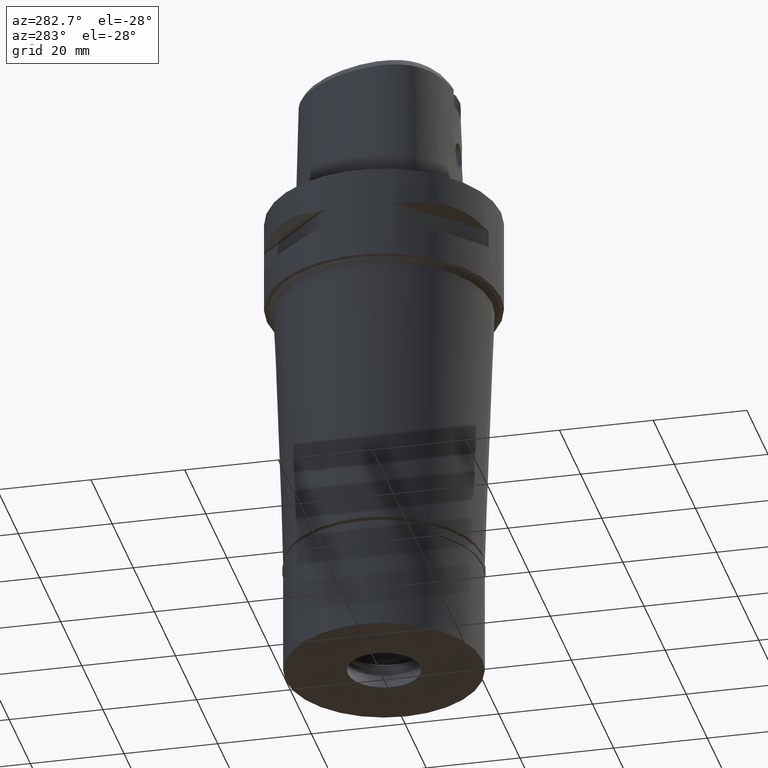
[diagram: clean part render]
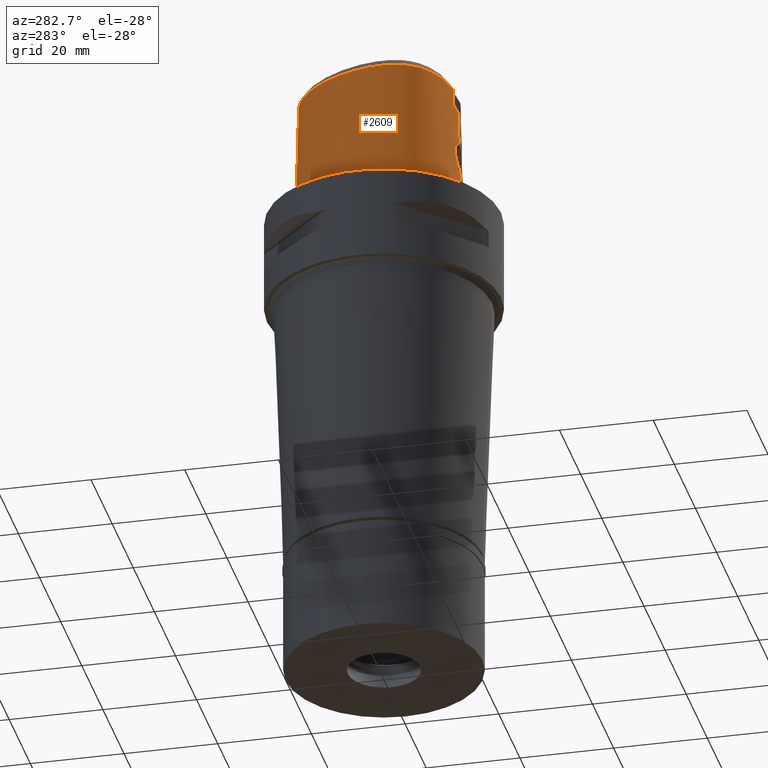
[diagram: same view with one face highlighted and labeled with its STEP entity id]
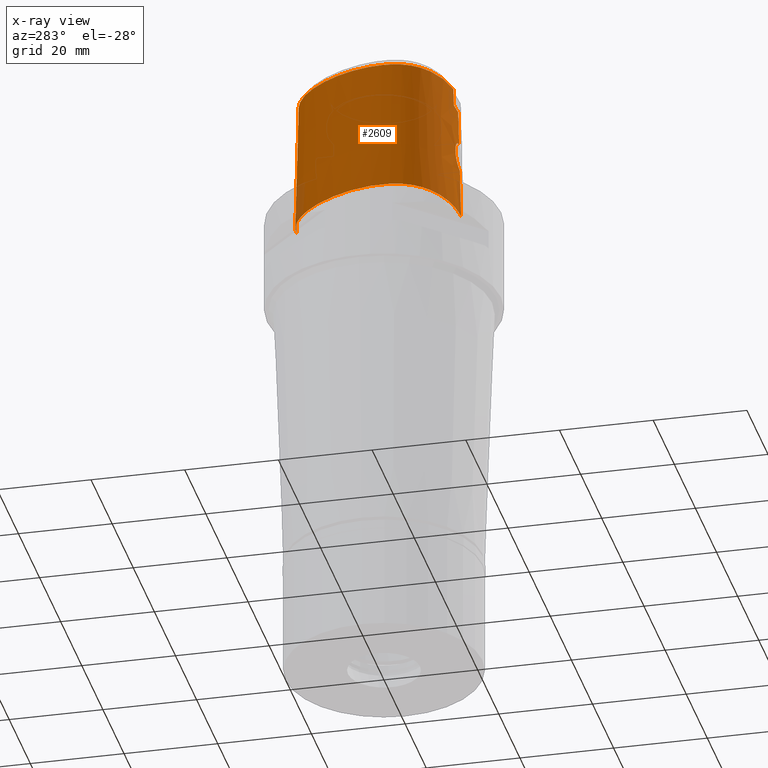
[diagram: x-ray of the same camera — body ghosted, the highlighted face saturated]
A machine part, auxiliary view. The second image highlights one B-rep face of the part: STEP entity #2609.
The next image is the same camera in x-ray: the body ghosted, the highlighted face saturated — about 2% of this face is hidden behind the body in this view.
In plain terms, the highlighted face is a freeform B-spline surface patch.
Its self-contained STEP definition (entity closure, byte-faithful):
#6 = VERTEX_POINT ( 'NONE', #270 ) ;
#20 = CARTESIAN_POINT ( 'NONE',  ( -11.32630895987000130, -13.06981819039000037, 29.09114864008999746 ) ) ;
#39 = CARTESIAN_POINT ( 'NONE',  ( -13.05575607615000067, -11.90823715250999904, 29.09114864008999746 ) ) ;
#49 = CARTESIAN_POINT ( 'NONE',  ( 2.030224829794000080E-07, -15.83752876601000281, 24.70000006102999990 ) ) ;
#71 = CARTESIAN_POINT ( 'NONE',  ( -3.168920966622999824, -15.55911077538999976, 28.52071192346999950 ) ) ;
#105 = ORIENTED_EDGE ( 'NONE', *, *, #3961, .T. ) ;
#108 = CARTESIAN_POINT ( 'NONE',  ( 1.070056060587999847, -15.95437367733000222, 19.20396086698999838 ) ) ;
#136 = VECTOR ( 'NONE', #3525, 1000.000000000000227 ) ;
#144 = CARTESIAN_POINT ( 'NONE',  ( -15.07117015427892426, -9.793013966485411004, 28.52071192347006345 ) ) ;
#157 = CARTESIAN_POINT ( 'NONE',  ( -2.152758532514000202E-12, -16.18126839358999902, 10.94999999999999929 ) ) ;
#192 = CARTESIAN_POINT ( 'NONE',  ( -4.735056264440999918, 17.74784407891000271, -0.5704146792174999980 ) ) ;
#228 = CARTESIAN_POINT ( 'NONE',  ( -3.048918288824035372, -15.93569181003062063, 14.09458409078622765 ) ) ;
#248 = CARTESIAN_POINT ( 'NONE',  ( -2.043508292966000006, 18.56419796941000300, -0.5704146792174999980 ) ) ;
#249 = CARTESIAN_POINT ( 'NONE',  ( 2.030224829794000080E-07, -15.83752876601000281, 24.70000006102999990 ) ) ;
#254 = CARTESIAN_POINT ( 'NONE',  ( -3.044373801969537219, -15.93377869067412078, 14.19140803545590757 ) ) ;
#270 = CARTESIAN_POINT ( 'NONE',  ( -3.094719018046000398E-11, 17.98202997909999823, 28.52071728569000086 ) ) ;
#274 = CARTESIAN_POINT ( 'NONE',  ( 0.3838142946076000261, 18.70350312468999832, -0.5704146792174999980 ) ) ;
#280 = CARTESIAN_POINT ( 'NONE',  ( -2.852964108057065573, -15.98613240798082913, 12.92095709857099983 ) ) ;
#286 = CARTESIAN_POINT ( 'NONE',  ( -14.78833380201542447, -11.28232909967865361, 1.088239041252287570E-07 ) ) ;
#308 = CARTESIAN_POINT ( 'NONE',  ( -2.785351805582557017, -15.99721084885888445, 12.75429401941662633 ) ) ;
#329 = CARTESIAN_POINT ( 'NONE',  ( -17.02224577203999800, -0.3128848840006000498, 19.20396086698999838 ) ) ;
#335 = CARTESIAN_POINT ( 'NONE',  ( -1.671121799479498682, -15.99125384014655360, 16.55147925626865657 ) ) ;
#339 = ORIENTED_EDGE ( 'NONE', *, *, #518, .F. ) ;
#350 = CARTESIAN_POINT ( 'NONE',  ( -15.57503089765999782, -8.992248280335999766, 29.09114864008999746 ) ) ;
#356 = CARTESIAN_POINT ( 'NONE',  ( -2.277845221344409588, -16.06297226044945603, 11.97064251377653399 ) ) ;
#370 = CARTESIAN_POINT ( 'NONE',  ( -14.43869628594999810, -10.95090976352000034, 19.20396086698999838 ) ) ;
#377 = CARTESIAN_POINT ( 'NONE',  ( -1.365876440252949298, -16.14000093520532175, 11.27254294479042862 ) ) ;
#393 = CARTESIAN_POINT ( 'NONE',  ( -14.39249255182000020, 8.309508948475000878, -0.5704146792174999980 ) ) ;
#416 = CARTESIAN_POINT ( 'NONE',  ( -10.90668505245999853, 11.98047074195000050, 29.09114864008999746 ) ) ;
#421 = CARTESIAN_POINT ( 'NONE',  ( -2.567601606276564752, -16.02824055683983673, 12.35375696231889009 ) ) ;
#436 = CARTESIAN_POINT ( 'NONE',  ( 1.079551361422000033, -16.20136644801999992, 9.316773093885998946 ) ) ;
#443 = CARTESIAN_POINT ( 'NONE',  ( -2.651693848328784853, -16.01689519106128756, 12.49206992028461016 ) ) ;
#459 = CARTESIAN_POINT ( 'NONE',  ( -1.309813752288000011, -16.25411917817999807, 9.316773093885998946 ) ) ;
#489 = CARTESIAN_POINT ( 'NONE',  ( -5.902447850708562704, -15.16907854011714996, 28.52071192347006701 ) ) ;
#518 = EDGE_CURVE ( 'NONE', #1573, #1793, #4616, .T. ) ;
#564 = CARTESIAN_POINT ( 'NONE',  ( -0.4507704910582000513, 17.98660866319999840, 29.09114864008999746 ) ) ;
#591 = CARTESIAN_POINT ( 'NONE',  ( -2.804416461969069463, -15.93383585885218778, 15.19914549896370914 ) ) ;
#596 = CARTESIAN_POINT ( 'NONE',  ( -4.728927205647177168, 17.73480468501485419, 1.088239041252287570E-07 ) ) ;
#611 = CARTESIAN_POINT ( 'NONE',  ( -1.992618747787999745, 18.32080816615999908, 9.316773093885998946 ) ) ;
#620 = CARTESIAN_POINT ( 'NONE',  ( -2.663989615082480444, -15.94049756288798747, 15.48802251321458456 ) ) ;
#633 = B_SPLINE_CURVE_WITH_KNOTS ( 'NONE', 3,
 ( #49, #4168, #4429, #1788 ),
 .UNSPECIFIED., .F., .F.,
 ( 4, 4 ),
 ( 0.0000000000000000000, 1.000000000000000000 ),
 .UNSPECIFIED. ) ;
#639 = FACE_OUTER_BOUND ( 'NONE', #1041, .T. ) ;
#646 = CARTESIAN_POINT ( 'NONE',  ( -2.453157249249065863, -15.95160785209449195, 15.82331514068232181 ) ) ;
#669 = CARTESIAN_POINT ( 'NONE',  ( -3.027041479268470336, -15.93083733890006037, 14.38613028389022830 ) ) ;
#673 = ORIENTED_EDGE ( 'NONE', *, *, #2483, .T. ) ;
#693 = CARTESIAN_POINT ( 'NONE',  ( -17.22987931919999838, -3.272349403330999884, 19.20396086698999838 ) ) ;
#702 = CARTESIAN_POINT ( 'NONE',  ( -2.094858927816988459, -15.97106233740288062, 16.21701581232792577 ) ) ;
#721 = CARTESIAN_POINT ( 'NONE',  ( -15.46013588123999938, -10.07579656574999838, 9.316773093885998946 ) ) ;
#726 = CARTESIAN_POINT ( 'NONE',  ( -2.326795673539356013, -16.05749942887523218, 12.02743345691540533 ) ) ;
#736 = CARTESIAN_POINT ( 'NONE',  ( -11.28662494062000121, 12.30111481277999985, 9.316773093885998946 ) ) ;
#741 = CARTESIAN_POINT ( 'NONE',  ( -1.175386497639898220, -16.15078445366179949, 11.18557374674752403 ) ) ;
#757 = CARTESIAN_POINT ( 'NONE',  ( -15.25987606923999884, -9.930205357474001460, 19.20396086698999838 ) ) ;
#781 = CARTESIAN_POINT ( 'NONE',  ( 2.030224829794000080E-07, -15.83752876601000281, 24.70000006102999990 ) ) ;
#782 = CARTESIAN_POINT ( 'NONE',  ( -16.77753616556999816, -0.3562822995257000080, 29.09114864008999746 ) ) ;
#787 = CARTESIAN_POINT ( 'NONE',  ( -2.543826128444886425, -16.03134158490992078, 12.31726274100129359 ) ) ;
#877 = CARTESIAN_POINT ( 'NONE',  ( -14.26907056455793388, -10.79012254419233408, 28.52071192347006345 ) ) ;
#893 = CARTESIAN_POINT ( 'NONE',  ( 0.7264497205352999920, -16.46229665950000154, -0.5704146792174999980 ) ) ;
#896 = CARTESIAN_POINT ( 'NONE',  ( -3.235121119988999983, -15.64755630481999837, 24.69999999999999929 ) ) ;
#899 = CARTESIAN_POINT ( 'NONE',  ( -7.523733151595170199, 15.26501052509955336, 28.52071192347006345 ) ) ;
#958 = CARTESIAN_POINT ( 'NONE',  ( -0.7716804096376578270, -16.02065638628776512, 16.95256773572611309 ) ) ;
#973 = CARTESIAN_POINT ( 'NONE',  ( -0.4893119563403999783, 18.72969240737000263, -0.5704146792174999980 ) ) ;
#979 = CARTESIAN_POINT ( 'NONE',  ( -2.953287761239811182, -15.96791042230702473, 13.23104891048737386 ) ) ;
#985 = CARTESIAN_POINT ( 'NONE',  ( -16.51672824523044270, 3.703437499071053907, 1.088239041252287570E-07 ) ) ;
#1006 = CARTESIAN_POINT ( 'NONE',  ( -2.828519626698093870, -15.99018834924777188, 12.85893844538407826 ) ) ;
#1033 = CARTESIAN_POINT ( 'NONE',  ( -2.139722381400781082, -15.96867257770621507, 16.17353267031655051 ) ) ;
#1040 = CARTESIAN_POINT ( 'NONE',  ( -2.040572357107150125, 18.55015624731283452, 1.088239041252287570E-07 ) ) ;
#1041 = EDGE_LOOP ( 'NONE', ( #1366, #3652, #3955, #1513, #339, #673, #3791, #105 ) ) ;
#1052 = CARTESIAN_POINT ( 'NONE',  ( -1.893775706183934870, 17.84807082153901447, 28.52071192347006345 ) ) ;
#1053 = CARTESIAN_POINT ( 'NONE',  ( -1.084489118009463349, -15.83754148632643322, 24.70000016923104624 ) ) ;
#1058 = CARTESIAN_POINT ( 'NONE',  ( -0.3789226270132306507, -16.02723154424910490, 17.03294418566224877 ) ) ;
#1064 = CARTESIAN_POINT ( 'NONE',  ( -1.728596458601000357E-11, -16.45500000000000185, 1.597240858093999809E-13 ) ) ;
#1075 = CARTESIAN_POINT ( 'NONE',  ( -15.66039569324999903, -10.22138777402999921, -0.5704146792174999980 ) ) ;
#1101 = CARTESIAN_POINT ( 'NONE',  ( -17.57791639671999917, -5.458025465841999768, -0.5704146792174999980 ) ) ;
#1105 = CARTESIAN_POINT ( 'NONE',  ( -1.572520811367626781, -16.12649376600623796, 11.38472095010844498 ) ) ;
#1119 = CARTESIAN_POINT ( 'NONE',  ( -16.70311417931999998, -7.028822877637000310, 19.20396086698999838 ) ) ;
#1123 = CARTESIAN_POINT ( 'NONE',  ( -1.824495776585694617, -16.10763072133377705, 11.54770719424353764 ) ) ;
#1142 = CARTESIAN_POINT ( 'NONE',  ( -16.21839714751999750, -9.363695958963001331, -0.5704146792174999980 ) ) ;
#1150 = CARTESIAN_POINT ( 'NONE',  ( -2.152758532514000202E-12, -16.18126839358999902, 10.94999999999999929 ) ) ;
#1166 = CARTESIAN_POINT ( 'NONE',  ( -16.98194844896999811, -3.273961224848000118, 29.09114864008999746 ) ) ;
#1261 = CARTESIAN_POINT ( 'NONE',  ( -13.75951393052763549, 7.944084103041840983, 28.52071192347006345 ) ) ;
#1298 = VECTOR ( 'NONE', #3899, 1000.000000000000114 ) ;
#1312 = CARTESIAN_POINT ( 'NONE',  ( 0.5756361491114000417, 18.69183959964999886, -0.5704146792174999980 ) ) ;
#1319 = CARTESIAN_POINT ( 'NONE',  ( -3.050024389103566325, -15.93682728871436893, 14.04426652284395338 ) ) ;
#1346 = CARTESIAN_POINT ( 'NONE',  ( -0.6729281202665636785, -16.02259025627639133, 16.97651237904460331 ) ) ;
#1364 = CARTESIAN_POINT ( 'NONE',  ( -3.235121119988999983, -15.64755630481999837, 24.69999999999999929 ) ) ;
#1366 = ORIENTED_EDGE ( 'NONE', *, *, #1524, .F. ) ;
#1370 = CARTESIAN_POINT ( 'NONE',  ( -1.331640452552601328, -16.00477934145620296, 16.74576209627488765 ) ) ;
#1396 = CARTESIAN_POINT ( 'NONE',  ( -1.684236301197248098, -15.99068050411804265, 16.54283389550525385 ) ) ;
#1401 = CARTESIAN_POINT ( 'NONE',  ( -13.50690093311215989, -12.48264648222586004, 1.088239041252287570E-07 ) ) ;
#1422 = CARTESIAN_POINT ( 'NONE',  ( -2.955918695227855331, -15.92874700794740050, 14.77770287554761808 ) ) ;
#1427 = CARTESIAN_POINT ( 'NONE',  ( -16.66912841889917374, -8.445800780143073894, 1.088239041252287570E-07 ) ) ;
#1438 = CARTESIAN_POINT ( 'NONE',  ( -16.68217932079999954, -8.451606616537999273, -0.5704146792174999980 ) ) ;
#1445 = CARTESIAN_POINT ( 'NONE',  ( -1.185240961618061029, -16.15026635704342439, 11.18970954939998208 ) ) ;
#1465 = CARTESIAN_POINT ( 'NONE',  ( -16.84071409250999807, -5.352498117070000561, 29.09114864008999746 ) ) ;
#1489 = CARTESIAN_POINT ( 'NONE',  ( -7.668807714665000219, 15.44980314674999988, 19.20396086698999838 ) ) ;
#1496 = CARTESIAN_POINT ( 'NONE',  ( -1.489022098419193973, -16.13222843889005986, 11.33656707562937527 ) ) ;
#1512 = CARTESIAN_POINT ( 'NONE',  ( -11.47659488470000078, 12.46143684819999997, -0.5704146792174999980 ) ) ;
#1513 = ORIENTED_EDGE ( 'NONE', *, *, #3557, .T. ) ;
#1524 = EDGE_CURVE ( 'NONE', #3747, #4379, #2402, .T. ) ;
#1536 = CARTESIAN_POINT ( 'NONE',  ( -5.053620743780999014, -16.16974068437999890, -0.5704146792174999980 ) ) ;
#1559 = B_SPLINE_CURVE_WITH_KNOTS ( 'NONE', 3,
 ( #3287, #3209, #1040, #596, #4026, #2891, #2107, #985, #2553, #2131, #2081, #1811, #1427, #1782, #4803, #286, #1401, #4720, #3605, #4051, #4451, #1064 ),
 .UNSPECIFIED., .F., .F.,
 ( 4, 1, 1, 1, 1, 1, 1, 1, 1, 1, 1, 1, 1, 1, 1, 1, 1, 1, 1, 4 ),
 ( 0.0000000000000000000, 0.04166666666808999803, 0.08333333333469000737, 0.1666666666679000042, 0.2500000000011000090, 0.3333333333342999860, 0.4166666666675999942, 0.5000000000008000267, 0.5416666666674000430, 0.5833333333340000593, 0.6250000000005999645, 0.6458333333339000282, 0.6666666666671999808, 0.6875000000005000445, 0.7083333333337999971, 0.7500000000004000134, 0.7916666666671000607, 0.8333333333336000459, 0.9166666666668999985, 1.000000000000000000 ),
 .UNSPECIFIED. ) ;
#1573 = VERTEX_POINT ( 'NONE', #3161 ) ;
#1607 = CARTESIAN_POINT ( 'NONE',  ( -4.922186780944000084, -15.43572509670999970, 29.09114864008999746 ) ) ;
#1614 = CARTESIAN_POINT ( 'NONE',  ( -8.702202515497358348, -14.36510996956317321, 28.52071192347006345 ) ) ;
#1651 = CARTESIAN_POINT ( 'NONE',  ( -3.094719018046000398E-11, 17.98202997909999823, 28.52071728569000086 ) ) ;
#1660 = EDGE_CURVE ( 'NONE', #4774, #4041, #633, .T. ) ;
#1683 = B_SPLINE_CURVE_WITH_KNOTS ( 'NONE', 3,
 ( #1832, #2940, #1058, #1346, #958, #3623, #3645, #4795, #2835, #3311, #4445, #4825, #4022, #1370, #4714, #1750, #2492, #3971, #4075, #335, #1396, #4336, #2523, #2886, #2913, #702, #1776, #1033, #3997, #2547, #646, #2469, #620, #4045, #2102, #2203, #591, #2125, #3700, #1726, #4766, #1422, #3600, #669, #3232, #254, #228, #1319, #4741, #2857, #4361, #979, #3258, #4392, #280, #2175, #1006, #2149, #3672, #308, #2639, #2228, #443, #3724, #4099, #421, #2623, #787, #2986, #4515, #726, #356, #3765, #4122, #1853, #4472, #2245, #1123, #1105, #1496, #377, #1899, #3359, #4560, #1445, #741, #3743, #4866, #3789, #1150 ),
 .UNSPECIFIED., .F., .F.,
 ( 4, 2, 2, 1, 1, 1, 2, 2, 2, 2, 1, 2, 2, 2, 1, 1, 2, 2, 2, 2, 1, 1, 1, 2, 2, 2, 2, 2, 2, 2, 2, 1, 1, 1, 2, 2, 2, 2, 1, 2, 2, 2, 1, 1, 2, 2, 2, 2, 1, 1, 1, 2, 2, 4 ),
 ( 0.0000000000000000000, 0.06250000000002621514, 0.09375000000003930190, 0.1093750000000458800, 0.1171875000000491968, 0.1210937500000508482, 0.1230468750000514866, 0.1250000000000521250, 0.1562500000000583700, 0.1718750000000612566, 0.1796875000000629219, 0.1835937500000634770, 0.1875000000000640321, 0.2187500000000664746, 0.2343750000000676681, 0.2421875000000681954, 0.2460937500000684730, 0.2500000000000687228, 0.3125000000000682787, 0.3437500000000680567, 0.3593750000000681677, 0.3671875000000682232, 0.3710937500000682787, 0.3730468750000680012, 0.3750000000000676681, 0.4375000000000611733, 0.4687500000000578981, 0.4843750000000562883, 0.5000000000000546230, 0.5625000000000480727, 0.5937500000000445199, 0.6093750000000427436, 0.6171875000000419664, 0.6210937500000411893, 0.6230468750000409672, 0.6250000000000406342, 0.6562500000000388578, 0.6718750000000377476, 0.6796875000000369704, 0.6835937500000364153, 0.6875000000000357492, 0.7187500000000311973, 0.7343750000000288658, 0.7421875000000275335, 0.7460937500000269784, 0.7500000000000263123, 0.8125000000000155431, 0.8437500000000101030, 0.8593750000000074385, 0.8671875000000059952, 0.8710937500000055511, 0.8730468750000054401, 0.8750000000000054401, 1.000000000000000000 ),
 .UNSPECIFIED. ) ;
#1726 = CARTESIAN_POINT ( 'NONE',  ( -2.816407481551108205, -15.93333177460182881, 15.17063687596087362 ) ) ;
#1744 = CARTESIAN_POINT ( 'NONE',  ( -3.094719018046000398E-11, 17.98202997909999823, 28.52071728569000086 ) ) ;
#1750 = CARTESIAN_POINT ( 'NONE',  ( -1.509334869946248991, -15.99801316580287391, 16.65089544971855062 ) ) ;
#1776 = CARTESIAN_POINT ( 'NONE',  ( -2.121841374836663352, -15.96962928976703999, 16.19099185722633649 ) ) ;
#1782 = CARTESIAN_POINT ( 'NONE',  ( -16.20602471727766059, -9.356552733011271883, 1.088239041252287570E-07 ) ) ;
#1788 = CARTESIAN_POINT ( 'NONE',  ( 0.0000000000000000000, -16.02877864023999877, 17.05000000000000071 ) ) ;
#1793 = VERTEX_POINT ( 'NONE', #896 ) ;
#1811 = CARTESIAN_POINT ( 'NONE',  ( -17.16495051518848669, -7.165908202348020950, 1.088239041252287570E-07 ) ) ;
#1826 = CARTESIAN_POINT ( 'NONE',  ( -17.33218229532000265, -5.422849682918000624, 9.316773093885998946 ) ) ;
#1832 = CARTESIAN_POINT ( 'NONE',  ( 0.0000000000000000000, -16.02877864023999877, 17.05000000000000071 ) ) ;
#1847 = CARTESIAN_POINT ( 'NONE',  ( -14.79871907681000032, -11.29217324030999947, -0.5704146792174999980 ) ) ;
#1853 = CARTESIAN_POINT ( 'NONE',  ( -2.174903967716026898, -16.07399873101336496, 11.86167149722171921 ) ) ;
#1872 = CARTESIAN_POINT ( 'NONE',  ( -11.69401646398999972, -13.71637917763999859, -0.5704146792174999980 ) ) ;
#1894 = CARTESIAN_POINT ( 'NONE',  ( -14.17736239991000069, 8.185312174898999871, 9.316773093885998946 ) ) ;
#1899 = CARTESIAN_POINT ( 'NONE',  ( -1.304824586066017922, -16.14367980511033096, 11.24258093298039185 ) ) ;
#1916 = CARTESIAN_POINT ( 'NONE',  ( -16.06260405209999931, 3.539545327583000223, 19.20396086698999838 ) ) ;
#1965 = CARTESIAN_POINT ( 'NONE',  ( 0.7138086210330000236, -15.96808631167000136, 19.20396086698999838 ) ) ;
#1987 = CARTESIAN_POINT ( 'NONE',  ( -1.286803362776000048, -15.75925584313999828, 29.09114864008999746 ) ) ;
#2046 = CARTESIAN_POINT ( 'NONE',  ( -16.01658395503946153, -8.155509241189948355, 28.52071192347006345 ) ) ;
#2062 = EDGE_CURVE ( 'NONE', #6, #2580, #3917, .T. ) ;
#2071 = CARTESIAN_POINT ( 'NONE',  ( -1.941729202609999927, 18.07741836289999782, 19.20396086698999838 ) ) ;
#2081 = CARTESIAN_POINT ( 'NONE',  ( -17.56373942662683874, -5.455996093363066457, 1.088239041252287570E-07 ) ) ;
#2102 = CARTESIAN_POINT ( 'NONE',  ( -2.757857542923210392, -15.93590525390328061, 15.30389640928451378 ) ) ;
#2107 = CARTESIAN_POINT ( 'NONE',  ( -14.38008119453428613, 8.302343748632480924, 1.088239041252287570E-07 ) ) ;
#2118 = CARTESIAN_POINT ( 'NONE',  ( -4.522582266791999928, 17.29581184346000100, 19.20396086698999838 ) ) ;
#2125 = CARTESIAN_POINT ( 'NONE',  ( -2.810669180506971010, -15.93357175435964557, 15.18434255724989690 ) ) ;
#2131 = CARTESIAN_POINT ( 'NONE',  ( -17.71143735288884002, -3.269218750017643949, 1.088239041252287570E-07 ) ) ;
#2143 = CARTESIAN_POINT ( 'NONE',  ( -0.6295828121026221247, 17.98203011041624322, 28.52071192347006345 ) ) ;
#2149 = CARTESIAN_POINT ( 'NONE',  ( -2.823487070365362062, -15.99101270351569681, 12.84654193248368870 ) ) ;
#2152 = EDGE_CURVE ( 'NONE', #4041, #3747, #1683, .T. ) ;
#2175 = CARTESIAN_POINT ( 'NONE',  ( -2.835998777458668574, -15.98895818849806183, 12.87753709205216524 ) ) ;
#2197 = CARTESIAN_POINT ( 'NONE',  ( -16.94089130408000088, -7.099401461055999896, 9.316773093885998946 ) ) ;
#2203 = CARTESIAN_POINT ( 'NONE',  ( -2.789432624429007745, -15.93448362604002533, 15.23385107220149592 ) ) ;
#2222 = CARTESIAN_POINT ( 'NONE',  ( -16.53021708529999856, 3.708305584329000038, -0.5704146792174999980 ) ) ;
#2228 = CARTESIAN_POINT ( 'NONE',  ( -2.676760126935361583, -16.01335860443708370, 12.53714519679417627 ) ) ;
#2240 = CARTESIAN_POINT ( 'NONE',  ( -13.51574691241999915, -12.49390941244999986, -0.5704146792174999980 ) ) ;
#2245 = CARTESIAN_POINT ( 'NONE',  ( -1.994661405231719309, -16.09284332352419611, 11.68121651172277886 ) ) ;
#2262 = CARTESIAN_POINT ( 'NONE',  ( -13.96223224801000207, 8.061115401322000551, 19.20396086698999838 ) ) ;
#2284 = CARTESIAN_POINT ( 'NONE',  ( -16.46533705454999819, -6.958244294217000636, 29.09114864008999746 ) ) ;
#2306 = CARTESIAN_POINT ( 'NONE',  ( -1.321318947044000103, -16.50155084569999886, -0.5704146792174999980 ) ) ;
#2387 = CARTESIAN_POINT ( 'NONE',  ( -16.99625270563107904, -3.273868231552532038, 28.52071192347006345 ) ) ;
#2402 = LINE ( 'NONE', #4776, #1298 ) ;
#2403 = CARTESIAN_POINT ( 'NONE',  ( 0.7074880712817999129, -15.72098113775999906, 29.09114864008999746 ) ) ;
#2410 = CARTESIAN_POINT ( 'NONE',  ( -4.422474562381552232, 17.08283562090138119, 28.52071192347006345 ) ) ;
#2440 = CARTESIAN_POINT ( 'NONE',  ( -3.738627773282634514, -15.49270868799968603, 28.52071192347006701 ) ) ;
#2463 = CARTESIAN_POINT ( 'NONE',  ( 0.3738602559508000245, 18.45648976892000093, 9.316773093885998946 ) ) ;
#2469 = CARTESIAN_POINT ( 'NONE',  ( -2.615901618698787345, -15.94298692150371366, 15.57147967509453501 ) ) ;
#2483 = EDGE_CURVE ( 'NONE', #1573, #6, #4798, .T. ) ;
#2484 = CARTESIAN_POINT ( 'NONE',  ( -0.4636176461521999692, 18.23430324458999863, 19.20396086698999838 ) ) ;
#2492 = CARTESIAN_POINT ( 'NONE',  ( -1.578081282715749989, -15.99520688258703949, 16.61014732800386895 ) ) ;
#2523 = CARTESIAN_POINT ( 'NONE',  ( -1.858121229639966066, -15.98284882596957068, 16.42071856142329622 ) ) ;
#2547 = CARTESIAN_POINT ( 'NONE',  ( -2.319868985700254349, -15.95889227881316508, 15.99336665119471057 ) ) ;
#2553 = CARTESIAN_POINT ( 'NONE',  ( -17.49754712038485494, -0.2285937504776754392, 1.088239041252287570E-07 ) ) ;
#2580 = VERTEX_POINT ( 'NONE', #3591 ) ;
#2582 = CARTESIAN_POINT ( 'NONE',  ( 0.0000000000000000000, -16.02877864023999877, 17.05000000000000071 ) ) ;
#2597 = CARTESIAN_POINT ( 'NONE',  ( -7.976721801340999285, 15.84201698574000083, -0.5704146792174999980 ) ) ;
#2609 = ADVANCED_FACE ( 'NONE', ( #639 ), #4327, .T. ) ;
#2619 = CARTESIAN_POINT ( 'NONE',  ( -14.25868489051999966, -10.78027802512000122, 29.09114864008999746 ) ) ;
#2623 = CARTESIAN_POINT ( 'NONE',  ( -2.552453281223320936, -16.03022206925511384, 12.33036638904223814 ) ) ;
#2634 = CARTESIAN_POINT ( 'NONE',  ( -7.822764758003000196, 15.64591006625000169, 9.316773093885998946 ) ) ;
#2639 = CARTESIAN_POINT ( 'NONE',  ( -2.746377481657158892, -16.00326057041208117, 12.66963668950923427 ) ) ;
#2657 = CARTESIAN_POINT ( 'NONE',  ( -13.36241663366999965, -12.29868532581000018, 9.316773093885998946 ) ) ;
#2702 = CARTESIAN_POINT ( 'NONE',  ( 1.089046662255999998, -16.44835921869999851, -0.5704146792174999980 ) ) ;
#2758 = CARTESIAN_POINT ( 'NONE',  ( -15.58740380353834176, -8.999391780896363713, 28.52071192347006345 ) ) ;
#2779 = CARTESIAN_POINT ( 'NONE',  ( -10.91764528034727455, 11.98972044748609100, 28.52071192347006345 ) ) ;
#2828 = CARTESIAN_POINT ( 'NONE',  ( -2.169052023958539355, -15.77399788493655208, 24.70000016923104624 ) ) ;
#2835 = CARTESIAN_POINT ( 'NONE',  ( -1.123850819246874799, -16.01154604563820882, 16.83544840129984621 ) ) ;
#2850 = CARTESIAN_POINT ( 'NONE',  ( 0.5455910013629000632, 18.19844124335999780, 19.20396086698999838 ) ) ;
#2857 = CARTESIAN_POINT ( 'NONE',  ( -3.033174470079178064, -15.94941370605617870, 13.62317640955339115 ) ) ;
#2886 = CARTESIAN_POINT ( 'NONE',  ( -1.974011923642906785, -15.97722169910668200, 16.32556985268775307 ) ) ;
#2891 = CARTESIAN_POINT ( 'NONE',  ( -11.46563507814293104, 12.45218749823809823, 1.088239041252287570E-07 ) ) ;
#2913 = CARTESIAN_POINT ( 'NONE',  ( -2.030787586191781902, -15.97439197203208039, 16.27657083949377181 ) ) ;
#2940 = CARTESIAN_POINT ( 'NONE',  ( -0.1860095695925088610, -16.02877864024000232, 17.05000000000000782 ) ) ;
#2956 = CARTESIAN_POINT ( 'NONE',  ( -16.45596373100999799, -8.350972138224999952, 9.316773093885998946 ) ) ;
#2982 = CARTESIAN_POINT ( 'NONE',  ( -15.05961625722999919, -9.784614149193998855, 29.09114864008999746 ) ) ;
#2986 = CARTESIAN_POINT ( 'NONE',  ( -2.481413756882850485, -16.03938740154340081, 12.22374741087844896 ) ) ;
#3000 = CARTESIAN_POINT ( 'NONE',  ( -8.782085141561999819, -14.58525468513999890, 19.20396086698999838 ) ) ;
#3018 = CARTESIAN_POINT ( 'NONE',  ( -15.78948631427999949, -9.116064173212000910, 19.20396086698999838 ) ) ;
#3043 = CARTESIAN_POINT ( 'NONE',  ( -5.009809422834999637, -15.92506882181999828, 9.316773093885998946 ) ) ;
#3119 = CARTESIAN_POINT ( 'NONE',  ( -11.33338053121870992, -13.08225253589922943, 28.52071192347006345 ) ) ;
#3145 = CARTESIAN_POINT ( 'NONE',  ( -16.79165457291126273, -0.3537785057483348594, 28.52071192347006345 ) ) ;
#3161 = CARTESIAN_POINT ( 'NONE',  ( -3.168920966622999824, -15.55911077538999976, 28.52071192346999950 ) ) ;
#3193 = CARTESIAN_POINT ( 'NONE',  ( -0.4764648012463000293, 18.48199782597999885, 9.316773093885998946 ) ) ;
#3209 = CARTESIAN_POINT ( 'NONE',  ( -0.6801907856718545364, 18.69499999728294526, 1.088239041252287438E-07 ) ) ;
#3232 = CARTESIAN_POINT ( 'NONE',  ( -3.040936525959274661, -15.93294854341571032, 14.23999838212785107 ) ) ;
#3258 = CARTESIAN_POINT ( 'NONE',  ( -2.909137552899625945, -15.97627371699405785, 13.08234413149751241 ) ) ;
#3287 = CARTESIAN_POINT ( 'NONE',  ( 7.243243713393999948E-11, 18.69499999997999851, 1.586138627847999922E-13 ) ) ;
#3311 = CARTESIAN_POINT ( 'NONE',  ( -1.142332392167070942, -16.01097948216498068, 16.82800652385402174 ) ) ;
#3332 = CARTESIAN_POINT ( 'NONE',  ( -17.47781018942999864, -3.270737581814000094, 9.316773093885998946 ) ) ;
#3352 = CARTESIAN_POINT ( 'NONE',  ( -17.72574105966999980, -3.269125760296999861, -0.5704146792174999980 ) ) ;
#3359 = CARTESIAN_POINT ( 'NONE',  ( -1.234760267101798314, -16.14760890805741411, 11.21096960602437242 ) ) ;
#3378 = CARTESIAN_POINT ( 'NONE',  ( -8.951632340777999630, -15.05250171727999842, -0.5704146792174999980 ) ) ;
#3401 = CARTESIAN_POINT ( 'NONE',  ( -13.74710209610999989, 7.936918627746000432, 29.09114864008999746 ) ) ;
#3421 = CARTESIAN_POINT ( 'NONE',  ( -8.697311541954000802, -14.35163116907000003, 29.09114864008999746 ) ) ;
#3525 = DIRECTION ( 'NONE',  ( 3.623588411843884826E-12, 0.02499051285796925065, -0.9996876883642689116 ) ) ;
#3528 = CARTESIAN_POINT ( 'NONE',  ( -3.213444811939455636, -15.61774738279276953, 25.97357064115666603 ) ) ;
#3544 = CARTESIAN_POINT ( 'NONE',  ( -16.85489160761147787, -5.354527567564536739, 28.52071192347006345 ) ) ;
#3557 = EDGE_CURVE ( 'NONE', #4774, #1793, #4621, .T. ) ;
#3566 = CARTESIAN_POINT ( 'NONE',  ( -1.890839657432999976, 17.83402855964000011, 29.09114864008999746 ) ) ;
#3591 = CARTESIAN_POINT ( 'NONE',  ( 7.243243713393999948E-11, 18.69499999997999851, 1.586138627847999922E-13 ) ) ;
#3600 = CARTESIAN_POINT ( 'NONE',  ( -3.012997481774263520, -15.92993551890235437, 14.48403558617119913 ) ) ;
#3605 = CARTESIAN_POINT ( 'NONE',  ( -8.946741555252165412, -15.03902343493533955, 1.088239041252287570E-07 ) ) ;
#3623 = CARTESIAN_POINT ( 'NONE',  ( -0.9200171648320253359, -16.01717542030822727, 16.90838961258319273 ) ) ;
#3645 = CARTESIAN_POINT ( 'NONE',  ( -0.9942354941279714087, -16.01528989706931938, 16.88423654522872752 ) ) ;
#3652 = ORIENTED_EDGE ( 'NONE', *, *, #2152, .F. ) ;
#3672 = CARTESIAN_POINT ( 'NONE',  ( -2.820449305715940991, -15.99150796465939273, 12.83914045378499225 ) ) ;
#3682 = CARTESIAN_POINT ( 'NONE',  ( -8.866858741170000613, -14.81887820121000132, 9.316773093885998946 ) ) ;
#3692 = CARTESIAN_POINT ( 'NONE',  ( -4.416345267967000332, 17.06979572572999970, 29.09114864008999746 ) ) ;
#3700 = CARTESIAN_POINT ( 'NONE',  ( -2.814800487489227176, -15.93339868692384265, 15.17448999603886506 ) ) ;
#3718 = CARTESIAN_POINT ( 'NONE',  ( -17.17866842885000267, -7.169980044476000458, -0.5704146792174999980 ) ) ;
#3724 = CARTESIAN_POINT ( 'NONE',  ( -2.611019405680786498, -16.02245593392139966, 12.42336243517980954 ) ) ;
#3737 = CARTESIAN_POINT ( 'NONE',  ( -13.20908635490999927, -12.10346123915999783, 19.20396086698999838 ) ) ;
#3743 = CARTESIAN_POINT ( 'NONE',  ( -1.171575576435078592, -16.15098385800270719, 11.18398276020164595 ) ) ;
#3747 = VERTEX_POINT ( 'NONE', #157 ) ;
#3760 = CARTESIAN_POINT ( 'NONE',  ( -11.57144729594999966, -13.50085884856000007, 9.316773093885998946 ) ) ;
#3765 = CARTESIAN_POINT ( 'NONE',  ( -2.218346767529178809, -16.06939536445589667, 11.90655067609835172 ) ) ;
#3783 = CARTESIAN_POINT ( 'NONE',  ( -15.82879753550999880, 3.455165199209000004, 29.09114864008999746 ) ) ;
#3789 = CARTESIAN_POINT ( 'NONE',  ( -0.3804472261492269358, -16.18126839359000613, 10.95000000000000284 ) ) ;
#3791 = ORIENTED_EDGE ( 'NONE', *, *, #2062, .T. ) ;
#3805 = CARTESIAN_POINT ( 'NONE',  ( -1.298308557531999918, -16.00668751065999729, 19.20396086698999838 ) ) ;
#3871 = CARTESIAN_POINT ( 'NONE',  ( -3.191384176940533557, -15.58827403572775339, 27.24714128231333277 ) ) ;
#3899 = DIRECTION ( 'NONE',  ( -1.381596326677966557E-12, -0.02499051295371941192, -0.9996876883618752707 ) ) ;
#3917 = LINE ( 'NONE', #1651, #136 ) ;
#3955 = ORIENTED_EDGE ( 'NONE', *, *, #1660, .F. ) ;
#3961 = EDGE_CURVE ( 'NONE', #2580, #4379, #1559, .T. ) ;
#3971 = CARTESIAN_POINT ( 'NONE',  ( -1.612726137507344282, -15.99376531707256355, 16.58900383220465713 ) ) ;
#3997 = CARTESIAN_POINT ( 'NONE',  ( -2.147290074988720043, -15.96826519308855374, 16.16606823402862858 ) ) ;
#4022 = CARTESIAN_POINT ( 'NONE',  ( -1.246904710699983099, -16.00770134240428177, 16.78481881916745522 ) ) ;
#4026 = CARTESIAN_POINT ( 'NONE',  ( -7.967839662530810330, 15.83070312284171699, 1.088239041252287570E-07 ) ) ;
#4038 = CARTESIAN_POINT ( 'NONE',  ( 0.5606135752372000125, 18.44514042149999966, 9.316773093885998946 ) ) ;
#4041 = VERTEX_POINT ( 'NONE', #2582 ) ;
#4045 = CARTESIAN_POINT ( 'NONE',  ( -2.727932080407426962, -15.93733995233622203, 15.36492654819195458 ) ) ;
#4051 = CARTESIAN_POINT ( 'NONE',  ( -5.051093167090364489, -16.15562499730855706, 1.088239041252287570E-07 ) ) ;
#4066 = CARTESIAN_POINT ( 'NONE',  ( -11.09665499653999987, 12.14079277735999973, 19.20396086698999838 ) ) ;
#4075 = CARTESIAN_POINT ( 'NONE',  ( -1.647720974876873967, -15.99226611569826062, 16.56665347345831663 ) ) ;
#4093 = CARTESIAN_POINT ( 'NONE',  ( -7.514850671327000242, 15.25369622725999896, 29.09114864008999746 ) ) ;
#4099 = CARTESIAN_POINT ( 'NONE',  ( -2.589913444526261710, -16.02530027108240418, 12.38873572170439097 ) ) ;
#4117 = CARTESIAN_POINT ( 'NONE',  ( -17.51166498499000213, -0.2260900529504999978, -0.5704146792174999980 ) ) ;
#4122 = CARTESIAN_POINT ( 'NONE',  ( -2.192347023517017046, -16.07215629485219566, 11.87955887064578420 ) ) ;
#4135 = CARTESIAN_POINT ( 'NONE',  ( -17.26695537852000228, -0.2694874684754999805, 9.316773093885998946 ) ) ;
#4157 = CARTESIAN_POINT ( 'NONE',  ( -11.44887812791000137, -13.28533851946999889, 19.20396086698999838 ) ) ;
#4168 = CARTESIAN_POINT ( 'NONE',  ( 6.782391356601994781E-08, -15.90128720080261004, 22.15000025259049110 ) ) ;
#4228 = CARTESIAN_POINT ( 'NONE',  ( -1.728596458601000357E-11, -16.45500000000000185, 1.597240858093999809E-13 ) ) ;
#4255 = CARTESIAN_POINT ( 'NONE',  ( -16.47905549557223637, -6.962316292879685342, 28.52071192347006345 ) ) ;
#4315 = CARTESIAN_POINT ( 'NONE',  ( -3.235121119988999983, -15.64755630481999837, 24.69999999999999929 ) ) ;
#4327 = B_SPLINE_SURFACE_WITH_KNOTS ( 'NONE', 3, 3, ( 
 ( #1312, #4038, #2850, #4438 ),
 ( #274, #2463, #4355, #4787 ),
 ( #973, #3193, #2484, #564 ),
 ( #248, #611, #2071, #3566 ),
 ( #192, #4707, #2118, #3692 ),
 ( #2597, #2634, #1489, #4093 ),
 ( #1512, #736, #4066, #416 ),
 ( #393, #1894, #2262, #3401 ),
 ( #2222, #4528, #1916, #3783 ),
 ( #4117, #4135, #329, #782 ),
 ( #3352, #3332, #693, #1166 ),
 ( #1101, #1826, #4509, #1465 ),
 ( #3718, #2197, #1119, #2284 ),
 ( #1438, #2956, #4839, #4464 ),
 ( #1142, #4861, #3018, #350 ),
 ( #1075, #721, #757, #2982 ),
 ( #1847, #4490, #370, #2619 ),
 ( #2240, #2657, #3737, #39 ),
 ( #1872, #3760, #4157, #20 ),
 ( #3378, #3682, #3000, #3421 ),
 ( #1536, #3043, #4554, #1607 ),
 ( #2306, #459, #3805, #1987 ),
 ( #893, #4596, #1965, #2403 ),
 ( #2702, #436, #108, #4674 ) ),
 .UNSPECIFIED., .F., .F., .F.,
 ( 4, 1, 1, 1, 1, 1, 1, 1, 1, 1, 1, 1, 1, 1, 1, 1, 1, 1, 1, 1, 1, 4 ),
 ( 4, 4 ),
 ( -0.01173812893898000011, 0.0000000000000000000, 0.04166666666808999803, 0.08333333333469000737, 0.1666666666679000042, 0.2500000000011000090, 0.3333333333342999860, 0.4166666666675999942, 0.5000000000008000267, 0.5416666666674000430, 0.5833333333340000593, 0.6250000000005999645, 0.6458333333339000282, 0.6666666666671999808, 0.6875000000005000445, 0.7083333333337999971, 0.7500000000004000134, 0.7916666666671000607, 0.8333333333336000459, 0.9166666666668999985, 1.000000000000000000, 1.017968513185000035 ),
 ( 2.144300358803000253E-09, 0.9999998906407000510 ),
 .UNSPECIFIED. ) ;
#4336 = CARTESIAN_POINT ( 'NONE',  ( -1.777739861706814750, -15.98655714082977042, 16.48034954023877319 ) ) ;
#4355 = CARTESIAN_POINT ( 'NONE',  ( 0.3639062172940000228, 18.20947641315000354, 19.20396086698999838 ) ) ;
#4361 = CARTESIAN_POINT ( 'NONE',  ( -2.977125115133986810, -15.96287852150346787, 13.32982323607667929 ) ) ;
#4379 = VERTEX_POINT ( 'NONE', #4228 ) ;
#4392 = CARTESIAN_POINT ( 'NONE',  ( -2.884965141857559701, -15.98065922520800619, 13.00785839096715968 ) ) ;
#4429 = CARTESIAN_POINT ( 'NONE',  ( 6.797913096749396072E-08, -15.96503292052207179, 19.60000012629526367 ) ) ;
#4438 = CARTESIAN_POINT ( 'NONE',  ( 0.5305684274886999230, 17.95174206520999860, 29.09114864008999746 ) ) ;
#4445 = CARTESIAN_POINT ( 'NONE',  ( -1.154649350554278753, -16.01059875151097245, 16.82300001247247678 ) ) ;
#4451 = CARTESIAN_POINT ( 'NONE',  ( -1.683697722367677452, -16.45499999727613627, 1.088239041252287570E-07 ) ) ;
#4464 = CARTESIAN_POINT ( 'NONE',  ( -16.00353255142000108, -8.149703181599999624, 29.09114864008999746 ) ) ;
#4472 = CARTESIAN_POINT ( 'NONE',  ( -2.167461438340674285, -16.07478142648848518, 11.85411610869221377 ) ) ;
#4490 = CARTESIAN_POINT ( 'NONE',  ( -14.61870768138000010, -11.12154150192000124, 9.316773093885998946 ) ) ;
#4509 = CARTESIAN_POINT ( 'NONE',  ( -17.08644819390999814, -5.387673899994000593, 19.20396086698999838 ) ) ;
#4515 = CARTESIAN_POINT ( 'NONE',  ( -2.421847348362510033, -16.04659734725418829, 12.14335169878023457 ) ) ;
#4528 = CARTESIAN_POINT ( 'NONE',  ( -16.29641056869999716, 3.623925455955999908, 9.316773093885998946 ) ) ;
#4554 = CARTESIAN_POINT ( 'NONE',  ( -4.965998101889000260, -15.68039695927000210, 19.20396086698999838 ) ) ;
#4560 = CARTESIAN_POINT ( 'NONE',  ( -1.200046882047543617, -16.14948273154545078, 11.19596910874581219 ) ) ;
#4596 = CARTESIAN_POINT ( 'NONE',  ( 0.7201291707840999923, -16.21519148557999657, 9.316773093885998946 ) ) ;
#4616 = B_SPLINE_CURVE_WITH_KNOTS ( 'NONE', 3,
 ( #4692, #3871, #3528, #4315 ),
 .UNSPECIFIED., .F., .F.,
 ( 4, 4 ),
 ( 0.0000000000000000000, 1.000000000000000000 ),
 .UNSPECIFIED. ) ;
#4621 = B_SPLINE_CURVE_WITH_KNOTS ( 'NONE', 3,
 ( #249, #1053, #2828, #1364 ),
 .UNSPECIFIED., .F., .F.,
 ( 4, 4 ),
 ( 0.0000000000000000000, 1.000000000000000000 ),
 .UNSPECIFIED. ) ;
#4632 = CARTESIAN_POINT ( 'NONE',  ( -13.06460239552629865, -11.91950051571796187, 28.52071192347006345 ) ) ;
#4659 = CARTESIAN_POINT ( 'NONE',  ( -15.84228689413337854, 3.460033471611854150, 28.52071192347006345 ) ) ;
#4674 = CARTESIAN_POINT ( 'NONE',  ( 1.060560759754000104, -15.70738090664000275, 29.09114864008999746 ) ) ;
#4692 = CARTESIAN_POINT ( 'NONE',  ( -3.168920966622999824, -15.55911077538999976, 28.52071192346999950 ) ) ;
#4707 = CARTESIAN_POINT ( 'NONE',  ( -4.628819265615999434, 17.52182796118000141, 9.316773093885998946 ) ) ;
#4714 = CARTESIAN_POINT ( 'NONE',  ( -1.464230115312987079, -15.99978155752931208, 16.67600899016878202 ) ) ;
#4720 = CARTESIAN_POINT ( 'NONE',  ( -11.68694516448478105, -13.70394531012862060, 1.088239041252287570E-07 ) ) ;
#4741 = CARTESIAN_POINT ( 'NONE',  ( -3.049900212868041471, -15.94261167837582605, 13.81468546120752627 ) ) ;
#4766 = CARTESIAN_POINT ( 'NONE',  ( -2.897875851387767376, -15.92997726602835762, 14.97345579577999608 ) ) ;
#4774 = VERTEX_POINT ( 'NONE', #781 ) ;
#4776 = CARTESIAN_POINT ( 'NONE',  ( -2.152758532514000202E-12, -16.18126839358999902, 10.94999999999999929 ) ) ;
#4787 = CARTESIAN_POINT ( 'NONE',  ( 0.3539521786371999656, 17.96246305737999904, 29.09114864008999746 ) ) ;
#4795 = CARTESIAN_POINT ( 'NONE',  ( -1.080687980689919447, -16.01283629952124699, 16.85233897233226941 ) ) ;
#4798 = B_SPLINE_CURVE_WITH_KNOTS ( 'NONE', 3,
 ( #71, #2440, #489, #1614, #3119, #4632, #877, #144, #2758, #2046, #4255, #3544, #2387, #3145, #4659, #1261, #2779, #899, #2410, #1052, #2143, #1744 ),
 .UNSPECIFIED., .F., .F.,
 ( 4, 1, 1, 1, 1, 1, 1, 1, 1, 1, 1, 1, 1, 1, 1, 1, 1, 1, 1, 4 ),
 ( 0.0000000000000000000, 0.03108635432773292767, 0.1191694130251540473, 0.1632109423737060638, 0.2072524717224695501, 0.2512940010711273153, 0.2733147657454561008, 0.2953355304197850528, 0.3173562950941138938, 0.3393770597684427903, 0.3834185891171004723, 0.4274601184657582098, 0.4715016478144159473, 0.5595847065117314223, 0.6476677652091525905, 0.7357508239064680655, 0.8238338826037835405, 0.9119169413011096736, 0.9559584706497672446, 1.000000000000000000 ),
 .UNSPECIFIED. ) ;
#4803 = CARTESIAN_POINT ( 'NONE',  ( -15.64884224035295546, -10.21298827964216294, 1.088239041252287570E-07 ) ) ;
#4825 = CARTESIAN_POINT ( 'NONE',  ( -1.161963448143505051, -16.01037049747072771, 16.81999471490725995 ) ) ;
#4839 = CARTESIAN_POINT ( 'NONE',  ( -16.22974814120999909, -8.250337659912998944, 19.20396086698999838 ) ) ;
#4861 = CARTESIAN_POINT ( 'NONE',  ( -16.00394173089999583, -9.239880066088000277, 9.316773093885998946 ) ) ;
#4866 = CARTESIAN_POINT ( 'NONE',  ( -0.7803301224165644090, -16.17127761896326987, 11.02218832487908351 ) ) ;